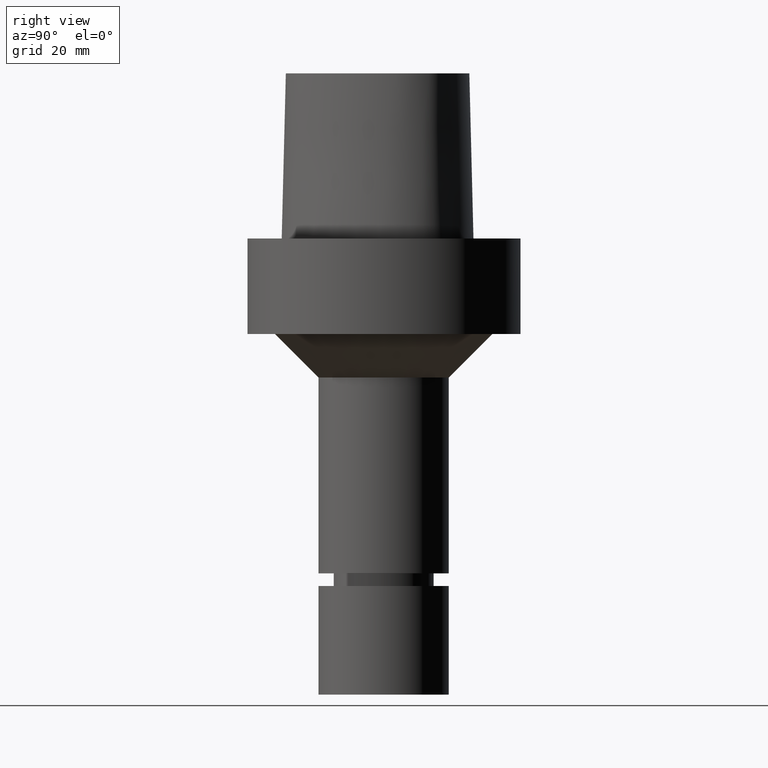
[diagram: clean part render]
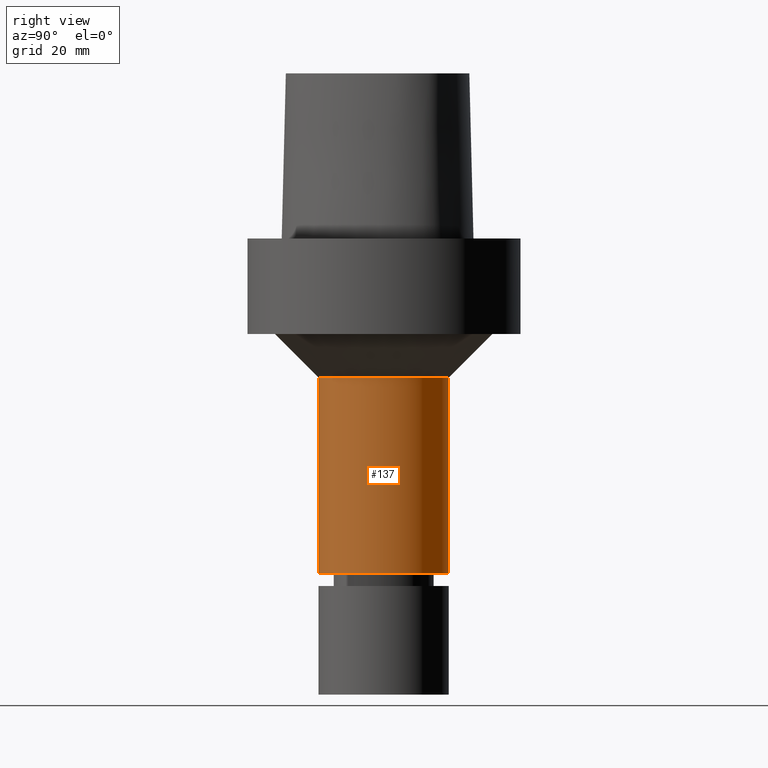
[diagram: same view with one face highlighted and labeled with its STEP entity id]
A machine part, right view. The second image highlights one B-rep face of the part: STEP entity #137.
In plain terms, the highlighted cylindrical surface (bore or boss wall) has radius 15 mm, axis along (0, 0, -1).
Its self-contained STEP definition (entity closure, byte-faithful):
#96=EDGE_CURVE('Unnamed[1]',#227,#227,#228,.T.);
#137=ADVANCED_FACE('Unnamed[1]',(#288,#289),#290,.T.);
#171=EDGE_CURVE('Unnamed[1]',#335,#335,#336,.T.);
#227=VERTEX_POINT('',#478);
#228=CIRCLE('',#479,14.9999999999999);
#288=FACE_BOUND('',#573,.T.);
#289=FACE_BOUND('',#574,.T.);
#290=CYLINDRICAL_SURFACE('',#575,15.0000000000001);
#335=VERTEX_POINT('',#734);
#336=CIRCLE('',#735,15.0000000000002);
#478=CARTESIAN_POINT('',(1.9594348786358E-015,14.9999999999999,-32.0000000000006));
#479=AXIS2_PLACEMENT_3D('',#773,#774,#775);
#573=EDGE_LOOP('',(#836));
#574=EDGE_LOOP('',(#837));
#575=AXIS2_PLACEMENT_3D('',#838,#839,#840);
#734=CARTESIAN_POINT('',(4.72101341771896E-015,15.0000000000002,-77.1000001144153));
#735=AXIS2_PLACEMENT_3D('',#884,#885,#886);
#773=CARTESIAN_POINT('',(1.9594348786358E-015,3.9188697572716E-015,-32.0000000000006));
#774=DIRECTION('',(6.12323399573677E-017,1.22464679914735E-016,-1.0));
#775=DIRECTION('',(-1.23259516440783E-032,1.0,1.22464679914735E-016));
#836=ORIENTED_EDGE('',*,*,#171,.F.);
#837=ORIENTED_EDGE('',*,*,#96,.T.);
#838=CARTESIAN_POINT('',(3.34022414817738E-015,6.68044829635476E-015,-54.5500000572079));
#839=DIRECTION('',(6.12323399573677E-017,1.22464679914735E-016,-1.0));
#840=DIRECTION('',(-1.23259516440783E-032,1.0,1.22464679914735E-016));
#884=CARTESIAN_POINT('',(4.72101341771896E-015,9.44202683543792E-015,-77.1000001144153));
#885=DIRECTION('',(6.12323399573677E-017,1.22464679914735E-016,-1.0));
#886=DIRECTION('',(-1.23259516440783E-032,1.0,1.22464679914735E-016));